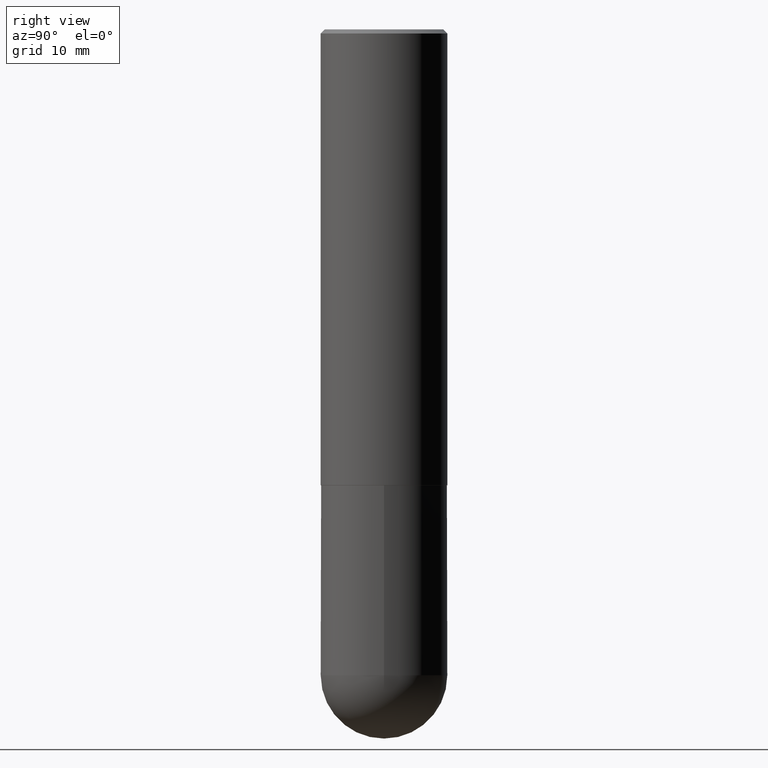
[diagram: clean part render]
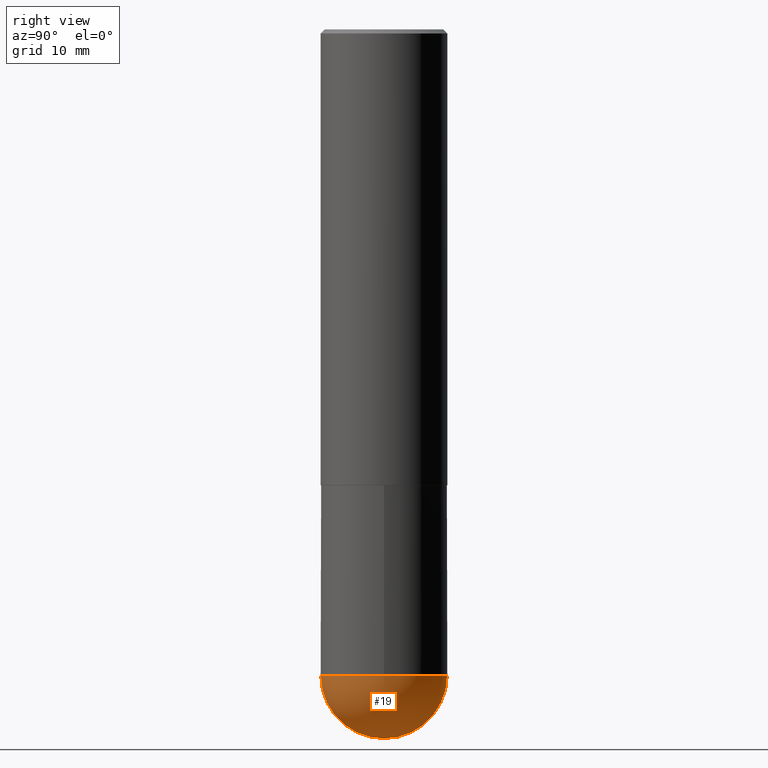
[diagram: same view with one face highlighted and labeled with its STEP entity id]
A machine part, right view. The second image highlights one B-rep face of the part: STEP entity #19.
In plain terms, the highlighted spherical surface has radius 7.9375 mm.
Its self-contained STEP definition (entity closure, byte-faithful):
#2 = AXIS2_PLACEMENT_3D ( 'NONE', #387, #322, #61 ) ;
#9 = DIRECTION ( 'NONE',  ( 6.982962677686265922E-15, 1.000000000000000000, -3.496765431890253764E-15 ) ) ;
#17 = VERTEX_POINT ( 'NONE', #290 ) ;
#18 = DIRECTION ( 'NONE',  ( 1.000000000000000000, -6.982962677686265922E-15, 4.883557194083112340E-29 ) ) ;
#19 = ADVANCED_FACE ( 'NONE', ( #235 ), #254, .T. ) ;
#27 = DIRECTION ( 'NONE',  ( -2.445468806185136597E-29, 3.491481338843145583E-15, 1.000000000000000000 ) ) ;
#33 = VERTEX_POINT ( 'NONE', #388 ) ;
#42 = AXIS2_PLACEMENT_3D ( 'NONE', #195, #27, #161 ) ;
#49 = EDGE_CURVE ( 'NONE', #256, #33, #157, .T. ) ;
#56 = VERTEX_POINT ( 'NONE', #71 ) ;
#61 = DIRECTION ( 'NONE',  ( 1.000000000000000000, -6.982962677686269077E-15, 0.000000000000000000 ) ) ;
#66 = CIRCLE ( 'NONE', #2, 0.3125000000000000000 ) ;
#71 = CARTESIAN_POINT ( 'NONE',  ( 2.182175836777035261E-15, 0.3124999999999887867, -3.187500000000000888 ) ) ;
#72 = AXIS2_PLACEMENT_3D ( 'NONE', #259, #100, #136 ) ;
#87 = CARTESIAN_POINT ( 'NONE',  ( 8.241383017002520278E-29, -1.267523194785438148E-14, -3.500000000000000444 ) ) ;
#100 = DIRECTION ( 'NONE',  ( -1.000000000000000000, 7.105427357601001070E-15, -4.926315508542082329E-29 ) ) ;
#103 = CIRCLE ( 'NONE', #42, 0.3125000000000000000 ) ;
#115 = EDGE_CURVE ( 'NONE', #17, #56, #103, .T. ) ;
#129 = CARTESIAN_POINT ( 'NONE',  ( 7.463812041801236655E-29, -1.160327913570257494E-14, -3.187500000000000000 ) ) ;
#136 = DIRECTION ( 'NONE',  ( -7.105427357601000281E-15, -1.000000000000000000, 0.000000000000000000 ) ) ;
#157 = CIRCLE ( 'NONE', #72, 0.3125000000000002776 ) ;
#161 = DIRECTION ( 'NONE',  ( 1.000000000000000000, -6.982962677686269077E-15, 0.000000000000000000 ) ) ;
#168 = ORIENTED_EDGE ( 'NONE', *, *, #115, .F. ) ;
#186 = CIRCLE ( 'NONE', #386, 0.3125000000000002776 ) ;
#195 = CARTESIAN_POINT ( 'NONE',  ( 7.794931819715121781E-29, -1.112909676756252622E-14, -3.187500000000000000 ) ) ;
#208 = EDGE_CURVE ( 'NONE', #256, #56, #186, .T. ) ;
#218 = ORIENTED_EDGE ( 'NONE', *, *, #398, .F. ) ;
#226 = AXIS2_PLACEMENT_3D ( 'NONE', #129, #353, #9 ) ;
#235 = FACE_OUTER_BOUND ( 'NONE', #390, .T. ) ;
#243 = CARTESIAN_POINT ( 'NONE',  ( 7.463812041801236655E-29, -1.160327913570257494E-14, -3.187500000000000000 ) ) ;
#254 = SPHERICAL_SURFACE ( 'NONE', #226, 0.3125000000000002776 ) ;
#256 = VERTEX_POINT ( 'NONE', #87 ) ;
#259 = CARTESIAN_POINT ( 'NONE',  ( 7.463812041801236655E-29, -1.160327913570257494E-14, -3.187500000000000000 ) ) ;
#267 = ORIENTED_EDGE ( 'NONE', *, *, #49, .F. ) ;
#290 = CARTESIAN_POINT ( 'NONE',  ( 0.3125000000000000000, -1.167464072675676384E-14, -3.187500000000000000 ) ) ;
#322 = DIRECTION ( 'NONE',  ( -2.445468806185136597E-29, 3.491481338843145583E-15, 1.000000000000000000 ) ) ;
#340 = ORIENTED_EDGE ( 'NONE', *, *, #208, .T. ) ;
#353 = DIRECTION ( 'NONE',  ( -1.000000000000000000, 6.982962677686265922E-15, -4.883557194083112901E-29 ) ) ;
#372 = DIRECTION ( 'NONE',  ( 6.982962677686265922E-15, 1.000000000000000000, 0.000000000000000000 ) ) ;
#386 = AXIS2_PLACEMENT_3D ( 'NONE', #243, #18, #372 ) ;
#387 = CARTESIAN_POINT ( 'NONE',  ( 7.794931819715121781E-29, -1.112909676756252622E-14, -3.187500000000000000 ) ) ;
#388 = CARTESIAN_POINT ( 'NONE',  ( -2.220446049250237350E-15, -0.3125000000000114908, -3.187499999999998668 ) ) ;
#390 = EDGE_LOOP ( 'NONE', ( #267, #340, #168, #218 ) ) ;
#398 = EDGE_CURVE ( 'NONE', #33, #17, #66, .T. ) ;